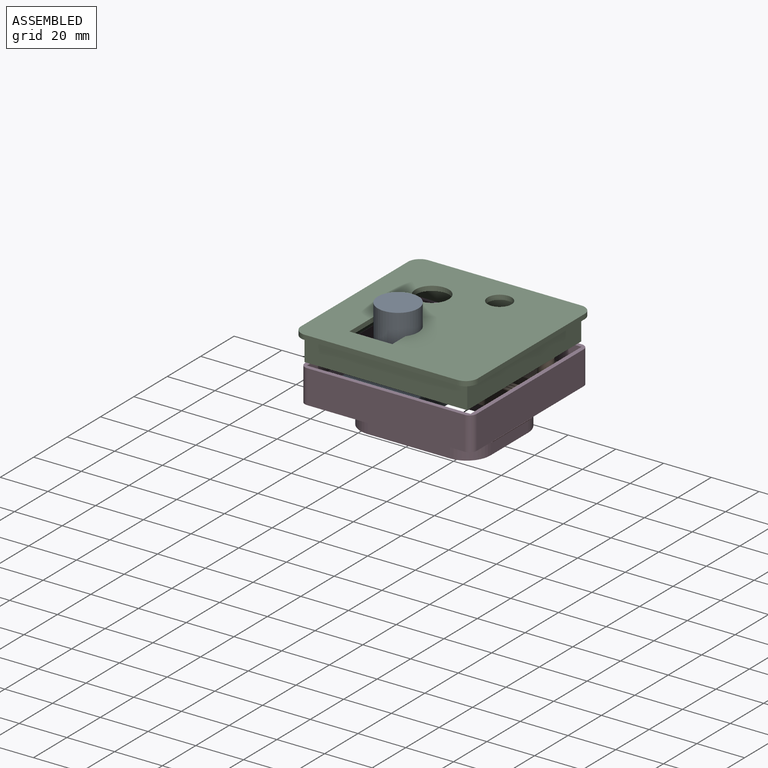
[diagram: assembled view]
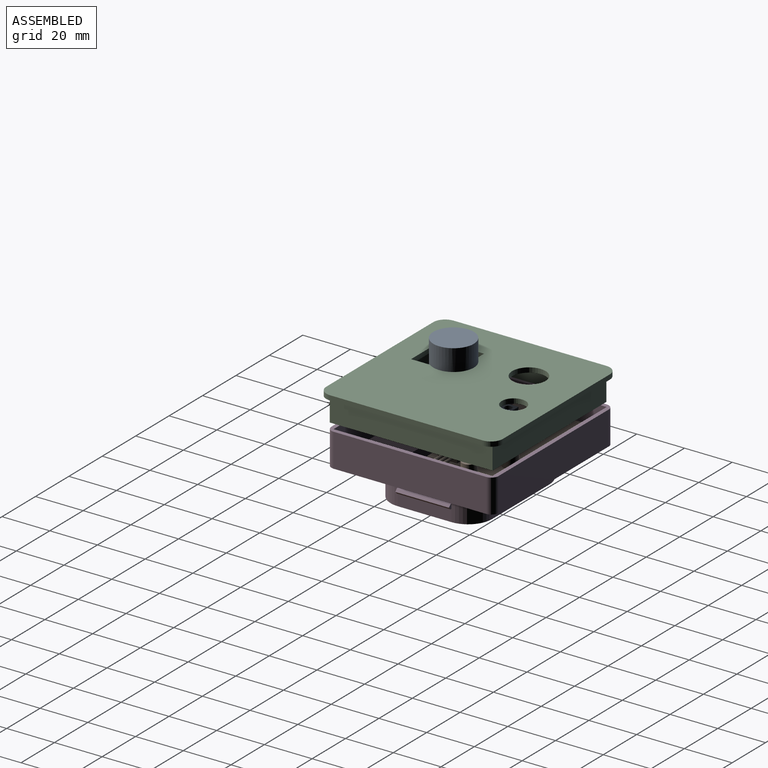
[diagram: assembled view, second angle]
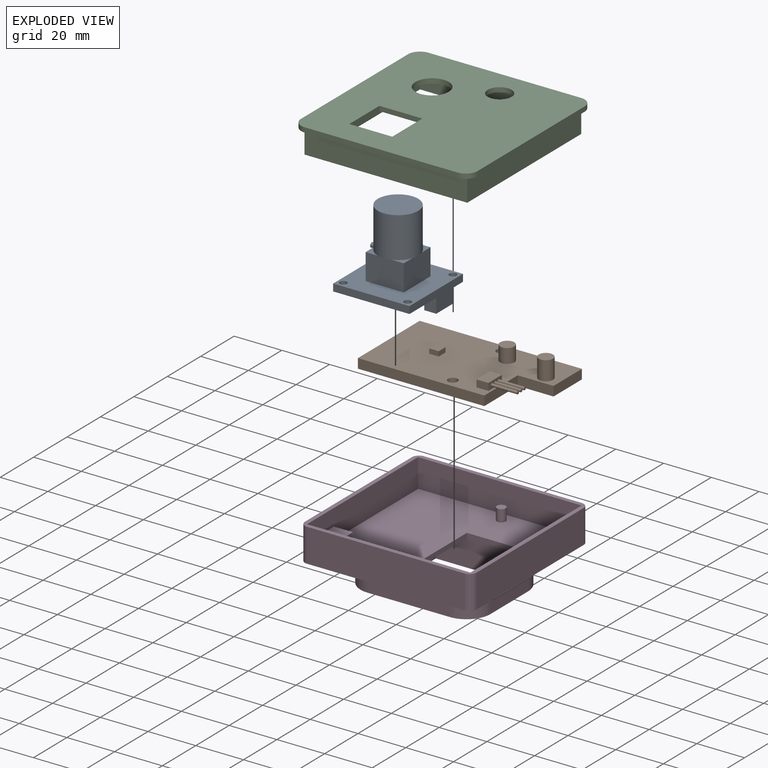
[diagram: exploded view]
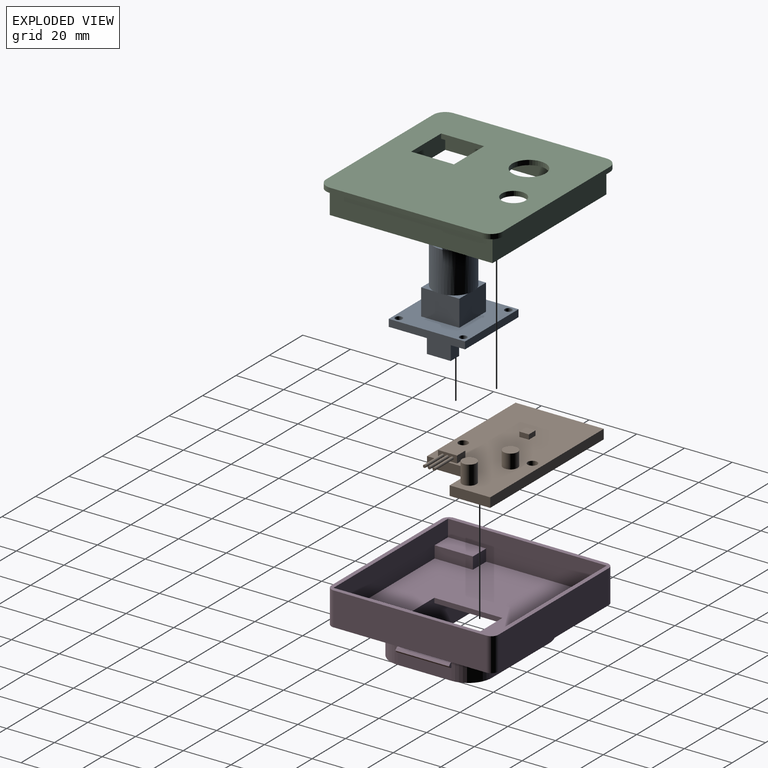
[diagram: exploded view, second angle]
ASSEMBLY  parts=4 mates=4
PART A: 30 faces, bbox 32x32x37 mm
  f0: plane 5.13x5.13mm, normal (0,0,1), area 9.2mm2, adj f13,f14,f21
  f1: plane 5.13x5.13mm, normal (0,0,1), area 9.2mm2, adj f14,f15,f21
  f2: plane 5.13x5.13mm, normal (0,0,1), area 9.2mm2, adj f15,f16,f21
  f3: plane 32x32mm, normal (0,0,1), area 739.7mm2, adj f4,f5,f6,f7,f8,f9,f10,f11
  f4: plane 32x3mm, normal (1,0,0), area 96mm2, adj f3,f5,f10,f12
  f5: plane 32x3mm, normal (0,1,0), area 96mm2, adj f3,f4,f6,f12
  f6: plane 32x3mm, normal (-1,0,0), area 96mm2, adj f3,f5,f10,f12
  f7: cylinder r=1.5mm len=3mm, axis (0,0,-1), area 28.3mm2, adj f3,f12
  f8: cylinder r=1.5mm len=3mm, axis (0,0,-1), area 28.3mm2, adj f3,f12
  f9: cylinder r=1.5mm len=3mm, axis (0,0,-1), area 28.3mm2, adj f3,f12
  f10: plane 32x9mm, normal (0,-1,0), area 156mm2, adj f3,f4,f6,f12,f26,f27,f29
  f11: cylinder r=1.5mm len=3mm, axis (0,0,-1), area 28.3mm2, adj f3,f12
  f12: plane 32x32mm, normal (0,0,-1), area 945.7mm2, adj f4,f5,f6,f7,f8,f9,f10,f11
  f13: plane 16x11mm, normal (1,0,0), area 176mm2, adj f0,f3,f14,f16,f17,f20
  f14: plane 16x11mm, normal (0,1,0), area 172.9mm2, adj f0,f1,f3,f13,f15,f18,f24
  f15: plane 16x11mm, normal (-1,0,0), area 176mm2, adj f1,f2,f3,f14,f16,f19
  f16: plane 16x11mm, normal (0,-1,0), area 176mm2, adj f2,f3,f13,f15,f17,f23
  f17: plane 5.13x5.13mm, normal (0,0,1), area 9.2mm2, adj f13,f16,f21
  f18: plane 5.74x0.5mm, normal (0,0,-1), area 1.9mm2, adj f14,f21
  f19: plane 5.74x0.5mm, normal (0,0,-1), area 1.9mm2, adj f15,f21
  f20: plane 5.74x0.5mm, normal (0,0,-1), area 1.9mm2, adj f13,f21
  f21: cylinder r=8.5mm len=17mm, axis (0,0,-1), area 907.9mm2, adj f0,f1,f2,f17,f18,f19,f20,f22
  f22: plane 17x17mm, normal (0,0,1), area 227mm2, adj f21
  f23: plane 5.74x0.5mm, normal (0,0,-1), area 1.9mm2, adj f16,f21
  f24: cylinder r=1mm len=3mm, axis (0,-1,0), area 18.8mm2, adj f14,f25
  f25: plane 2x2mm, normal (0,1,0), area 3.1mm2, adj f24
  f26: plane 6x5mm, normal (1,0,0), area 30mm2, adj f10,f12,f28,f29
  f27: plane 6x5mm, normal (-1,0,0), area 30mm2, adj f10,f12,f28,f29
  f28: plane 10x6mm, normal (0,1,0), area 60mm2, adj f12,f26,f27,f29
  f29: plane 10x5mm, normal (0,0,-1), area 50mm2, adj f10,f26,f27,f28
PART B: 30 faces, bbox 68x37x12 mm
  f0: plane 68x37mm, normal (0,0,1), area 2078.3mm2, adj f1,f2,f3,f4,f5,f6,f7,f8
  f1: plane 68x4mm, normal (0,1,0), area 272mm2, adj f0,f2,f7,f9
  f2: plane 37x4mm, normal (-1,0,0), area 148mm2, adj f0,f1,f3,f9
  f3: plane 53x4mm, normal (0,-1,0), area 212mm2, adj f0,f2,f4,f9
  f4: plane 20x4mm, normal (1,0,0), area 80mm2, adj f0,f3,f5,f9
  f5: plane 15x4mm, normal (0,-1,0), area 60mm2, adj f0,f4,f7,f9
  f6: cylinder r=2mm len=4mm, axis (0,0,-1), area 50.3mm2, adj f0,f9
  f7: plane 17x4mm, normal (1,0,0), area 68mm2, adj f0,f1,f5,f9
  f8: cylinder r=2mm len=4mm, axis (0,0,-1), area 50.3mm2, adj f0,f9
  f9: plane 68x37mm, normal (0,0,-1), area 2190.9mm2, adj f1,f2,f3,f4,f5,f6,f7,f8
  f10: plane 4x2mm, normal (0,-1,0), area 8mm2, adj f0,f11,f13,f14
  f11: plane 4x2mm, normal (1,0,0), area 8mm2, adj f0,f10,f12,f14
  f12: plane 4x2mm, normal (0,1,0), area 8mm2, adj f0,f11,f13,f14
  f13: plane 4x2mm, normal (-1,0,0), area 8mm2, adj f0,f10,f12,f14
  f14: plane 4x4mm, normal (0,0,1), area 16mm2, adj f10,f11,f12,f13
  f15: cylinder r=3mm len=8mm, axis (0,0,-1), area 150.8mm2, adj f0,f16
  f16: plane 6x6mm, normal (0,0,1), area 28.3mm2, adj f15
  f17: plane 8x3mm, normal (1,0,0), area 20.6mm2, adj f0,f18,f20,f21,f22,f24,f26
  f18: plane 5x3mm, normal (0,1,0), area 15mm2, adj f0,f17,f19,f21
  f19: plane 8x3mm, normal (-1,0,0), area 24mm2, adj f0,f18,f20,f21
  f20: plane 5x3mm, normal (0,-1,0), area 15mm2, adj f0,f17,f19,f21
  f21: plane 8x5mm, normal (0,0,1), area 40mm2, adj f17,f18,f19,f20
  f22: cylinder r=0.6mm len=11mm, axis (-1,0,0), area 41.5mm2, adj f17,f23
  f23: plane 1.2x1.2mm, normal (1,0,0), area 1.1mm2, adj f22
  f24: cylinder r=0.6mm len=11mm, axis (-1,0,0), area 41.5mm2, adj f17,f25
  f25: plane 1.2x1.2mm, normal (1,0,0), area 1.1mm2, adj f24
  f26: cylinder r=0.6mm len=11mm, axis (-1,0,0), area 41.5mm2, adj f17,f27
  f27: plane 1.2x1.2mm, normal (1,0,0), area 1.1mm2, adj f26
  f28: cylinder r=3mm len=6mm, axis (0,0,-1), area 113.1mm2, adj f0,f29
  f29: plane 6x6mm, normal (0,0,1), area 28.3mm2, adj f28
PART C: 26 faces, bbox 74x74x12 mm
  f0: plane 64x64mm, normal (0,0,-1), area 3539.5mm2, adj f2,f3,f4,f9,f16,f17,f18,f19
  f1: plane 74x74mm, normal (0,0,1), area 4898.1mm2, adj f12,f13,f14,f15,f16,f17,f18,f19
  f2: plane 64x10mm, normal (0,-1,0), area 640mm2, adj f0,f3,f9,f10
  f3: plane 64x10mm, normal (-1,0,0), area 640mm2, adj f0,f2,f4,f10
  f4: plane 64x10mm, normal (0,1,0), area 640mm2, adj f0,f3,f9,f10
  f5: plane 68.2x10mm, normal (1,0,0), area 682mm2, adj f6,f8,f10,f11
  f6: plane 68.2x10mm, normal (0,1,0), area 682mm2, adj f5,f7,f10,f11
  f7: plane 68.2x10mm, normal (-1,0,0), area 682mm2, adj f6,f8,f10,f11
  f8: plane 68.2x10mm, normal (0,-1,0), area 682mm2, adj f5,f7,f10,f11
  f9: plane 64x10mm, normal (1,0,0), area 640mm2, adj f0,f2,f4,f10
  f10: plane 68.2x68.2mm, normal (0,0,-1), area 555.2mm2, adj f2,f3,f4,f5,f6,f7,f8,f9
  f11: plane 74x74mm, normal (0,0,-1), area 803.3mm2, adj f5,f6,f7,f8,f12,f13,f14,f15
  f12: plane 64x2mm, normal (1,0,0), area 128mm2, adj f1,f11,f22,f25
  f13: plane 64x2mm, normal (0,1,0), area 128mm2, adj f1,f11,f22,f23
  f14: plane 64x2mm, normal (-1,0,0), area 128mm2, adj f1,f11,f23,f24
  f15: plane 64x2mm, normal (0,-1,0), area 128mm2, adj f1,f11,f24,f25
  f16: plane 18x2mm, normal (0,1,0), area 36mm2, adj f0,f1,f17,f19
  f17: plane 18x2mm, normal (-1,0,0), area 36mm2, adj f0,f1,f16,f18
  f18: plane 18x2mm, normal (0,-1,0), area 36mm2, adj f0,f1,f17,f19
  f19: plane 18x2mm, normal (1,0,0), area 36mm2, adj f0,f1,f16,f18
  f20: cylinder r=7mm len=14mm, axis (0,0,1), area 88mm2, adj f0,f1
  f21: cylinder r=5mm len=10mm, axis (0,0,1), area 62.8mm2, adj f0,f1
  f22: cylinder r=5mm len=5mm, axis (0,0,1), area 15.7mm2, adj f1,f11,f12,f13
  f23: cylinder r=5mm len=5mm, axis (0,0,-1), area 15.7mm2, adj f1,f11,f13,f14
  f24: cylinder r=5mm len=5mm, axis (0,0,1), area 15.7mm2, adj f1,f11,f14,f15
  f25: cylinder r=5mm len=5mm, axis (0,0,-1), area 15.7mm2, adj f1,f11,f12,f15
PART D: 58 faces, bbox 72x70x26 mm
  f0: plane 68.5x66.5mm, normal (0,0,1), area 3750.1mm2, adj f7,f28,f29,f30,f31,f33,f34,f35
  f1: plane 3.54x1.46mm, normal (0,0,-1), area 3.6mm2, adj f19,f53,f54
  f2: plane 27.07x1.46mm, normal (0,0,-1), area 36.4mm2, adj f6,f18,f19,f35
  f3: plane 22.5x4.5mm, normal (-1,0,0), area 101.2mm2, adj f13,f15,f16,f44
  f4: plane 22.5x5mm, normal (1,0,0), area 112.5mm2, adj f14,f17,f23,f36
  f5: plane 40x12mm, normal (0,-1,0), area 480mm2, adj f13,f18,f21,f22
  f6: plane 20x12mm, normal (-1,0,0), area 240mm2, adj f2,f13,f18,f19
  f7: plane 40x14mm, normal (0,1,0), area 520mm2, adj f0,f13,f19,f20,f22,f33,f54
  f8: plane 22.5x5mm, normal (1,0,0), area 112.5mm2, adj f13,f14,f17,f38
  f9: plane 34.5x12mm, normal (0,1,0), area 414mm2, adj f13,f14,f15,f23
  f10: plane 22.5x5.5mm, normal (-1,0,0), area 123.8mm2, adj f15,f16,f23,f42
  f11: plane 34.5x12mm, normal (0,-1,0), area 414mm2, adj f13,f16,f17,f23
  f12: plane 20x12mm, normal (1,0,0), area 240mm2, adj f13,f20,f21,f22
  f13: plane 54.5x42.5mm, normal (0,0,-1), area 751.9mm2, adj f3,f5,f6,f7,f8,f9,f11,f12
  f14: cylinder r=10mm len=12mm, axis (0,0,1), area 188.5mm2, adj f4,f8,f9,f13,f23,f39
  f15: cylinder r=10mm len=12mm, axis (0,0,-1), area 188.5mm2, adj f3,f9,f10,f13,f23,f43
  f16: cylinder r=10mm len=12mm, axis (0,0,1), area 188.5mm2, adj f3,f10,f11,f13,f23,f45
  f17: cylinder r=10mm len=12mm, axis (0,0,-1), area 188.5mm2, adj f4,f8,f11,f13,f23,f37
  f18: cylinder r=5mm len=12mm, axis (0,0,-1), area 94.2mm2, adj f2,f5,f6,f13,f22
  f19: cylinder r=5mm len=12mm, axis (0,0,1), area 94.2mm2, adj f1,f2,f6,f7,f13
  f20: cylinder r=5mm len=12mm, axis (0,0,-1), area 94.2mm2, adj f7,f12,f13,f22
  f21: cylinder r=5mm len=12mm, axis (0,0,1), area 94.2mm2, adj f5,f12,f13,f22
  f22: plane 48.54x30mm, normal (0,0,-1), area 772.1mm2, adj f5,f7,f12,f18,f20,f21,f33,f34
  f23: plane 72x70mm, normal (0,0,-1), area 2801.9mm2, adj f4,f9,f10,f11,f14,f15,f16,f17
  f24: plane 64x14mm, normal (1,0,0), area 896mm2, adj f23,f32,f47,f50
  f25: plane 66x14mm, normal (0,1,0), area 924mm2, adj f23,f32,f47,f48
  f26: plane 64x14mm, normal (-1,0,0), area 896mm2, adj f23,f32,f48,f49
  f27: plane 66x14mm, normal (0,-1,0), area 924mm2, adj f23,f32,f49,f50
  f28: plane 66.5x12mm, normal (1,0,0), area 718mm2, adj f0,f29,f31,f32,f55,f57
  f29: plane 68.5x12mm, normal (0,-1,0), area 822mm2, adj f0,f28,f30,f32
  f30: plane 66.5x12mm, normal (-1,0,0), area 798mm2, adj f0,f29,f31,f32
  f31: plane 68.5x12mm, normal (0,1,0), area 782mm2, adj f0,f28,f30,f32,f56,f57
  f32: plane 72x70mm, normal (0,0,1), area 477mm2, adj f24,f25,f26,f27,f28,f29,f30,f31
  f33: plane 28.54x2mm, normal (1,0,0), area 57.1mm2, adj f0,f7,f22,f34
  f34: plane 23.54x2mm, normal (0,-1,0), area 47.1mm2, adj f0,f22,f33,f35
  f35: plane 27.07x2mm, normal (-1,0,0), area 54.1mm2, adj f0,f2,f34,f53
  f36: plane 22.5x0.5mm, normal (0,0,1), area 11.3mm2, adj f4,f37,f39,f40
  f37: plane 2x1.5mm, normal (0,-1,0), area 2mm2, adj f17,f36,f38,f40,f41
  f38: plane 22.5x0.5mm, normal (0,0,-1), area 11.3mm2, adj f8,f37,f39,f41
  f39: plane 2x1.5mm, normal (0,1,0), area 2mm2, adj f14,f36,f38,f40,f41
  f40: plane 22.5x1mm, normal (0.71,0,0.71), area 31.8mm2, adj f36,f37,f39,f41
  f41: plane 22.5x1mm, normal (0.71,0,-0.71), area 31.8mm2, adj f37,f38,f39,f40
  f42: plane 22.5x5mm, normal (0,0,1), area 112.5mm2, adj f10,f43,f45,f46
  f43: plane 5x2mm, normal (0,1,0), area 10mm2, adj f15,f42,f44,f46
  f44: plane 22.5x5mm, normal (0,0,-1), area 112.5mm2, adj f3,f43,f45,f46
  f45: plane 5x2mm, normal (0,-1,0), area 10mm2, adj f16,f42,f44,f46
  f46: plane 22.5x2mm, normal (-1,0,0), area 45mm2, adj f42,f43,f44,f45
  f47: cylinder r=3mm len=14mm, axis (0,0,1), area 66mm2, adj f23,f24,f25,f32
  f48: cylinder r=3mm len=14mm, axis (0,0,-1), area 66mm2, adj f23,f25,f26,f32
  f49: cylinder r=3mm len=14mm, axis (0,0,1), area 66mm2, adj f23,f26,f27,f32
  f50: cylinder r=3mm len=14mm, axis (0,0,-1), area 66mm2, adj f23,f24,f27,f32
  f51: cylinder r=1.85mm len=5mm, axis (0,0,-1), area 58.1mm2, adj f0,f52
  f52: plane 3.7x3.7mm, normal (0,0,1), area 10.8mm2, adj f51
  f53: plane 3.54x2mm, normal (0,1,0), area 7.1mm2, adj f0,f1,f35,f54
  f54: plane 2x1.46mm, normal (-1,0,0), area 2.9mm2, adj f0,f1,f7,f53
  f55: plane 8x5mm, normal (0,1,0), area 40mm2, adj f0,f28,f56,f57
  f56: plane 16x5mm, normal (1,0,0), area 80mm2, adj f0,f31,f55,f57
  f57: plane 16x8mm, normal (0,0,1), area 128mm2, adj f28,f31,f55,f56
PLACE A rot(axis=(0,0,1),90deg) t=(-13.24,0.02,32.68)mm
PLACE B t=(-10.24,28.02,28.68)mm
PLACE C rot(axis=(0,0,1),180deg) t=(-3.49,12.92,42.68)mm
PLACE D t=(-3.49,13.77,14.68)mm
MATE planar B.f8 <-> D.f51  axis (0,0,-1) through (0.26,42.52,28.68)mm
MATE parallel B.f9 <-> D.f0  axis (0,0,-1) through (-6.4,29.19,28.68)mm
MATE planar C.f8 <-> D.f29  axis (0,1,0) through (-3.49,47.02,42.68)mm
MATE planar A.f7 <-> B.f6  axis (0,0,-1) through (0.26,13.52,32.68)mm
